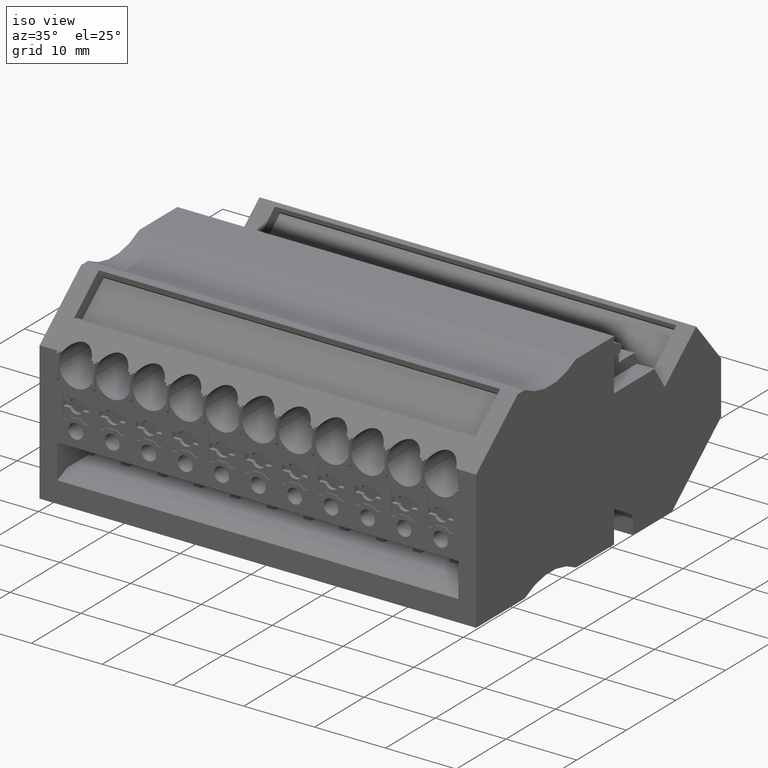
[diagram: clean part render]
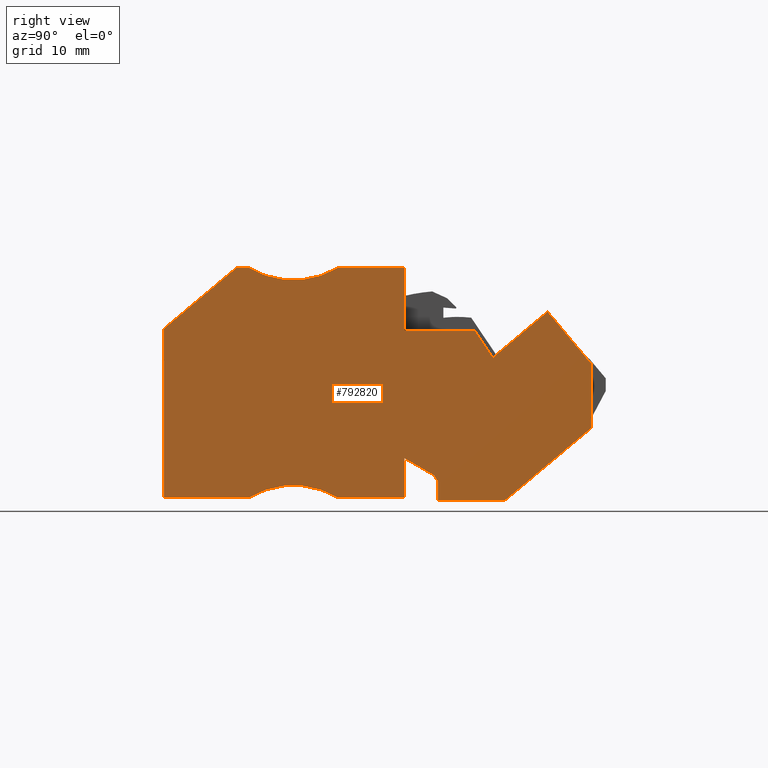
[diagram: tour spotlight — one face highlighted and labeled with its STEP entity id]
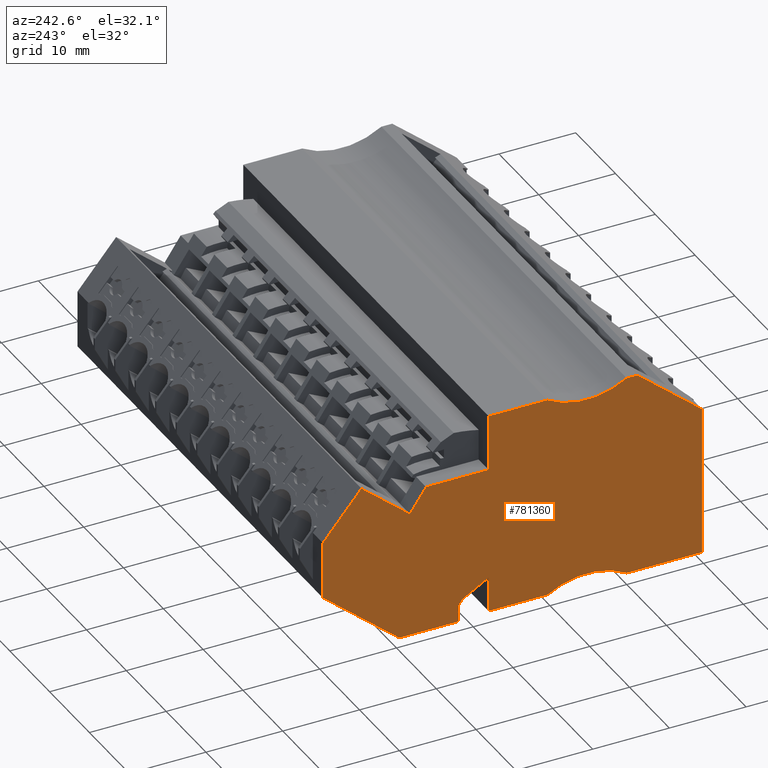
[diagram: tour spotlight — one face highlighted and labeled with its STEP entity id]
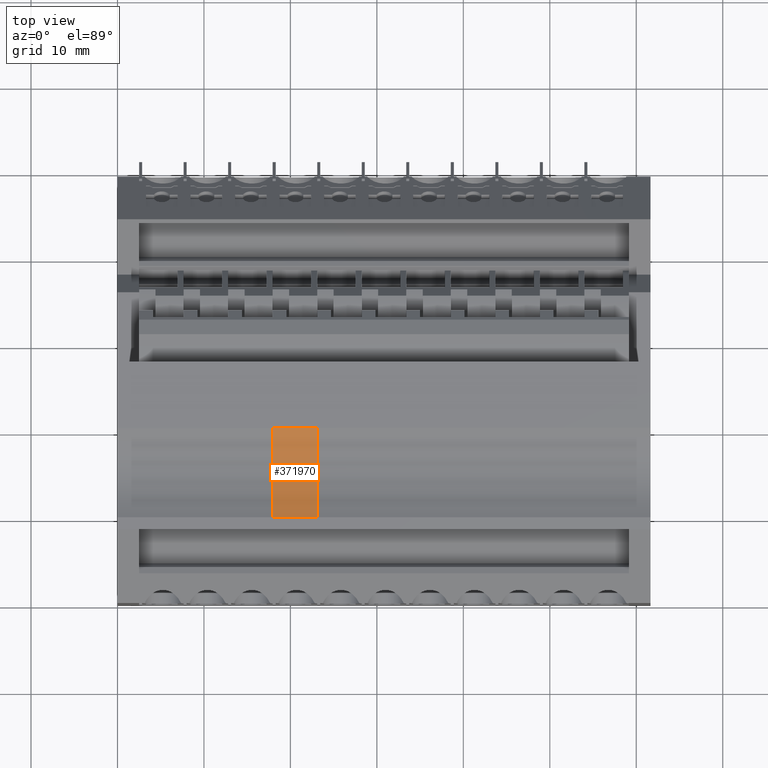
[diagram: tour spotlight — one face highlighted and labeled with its STEP entity id]
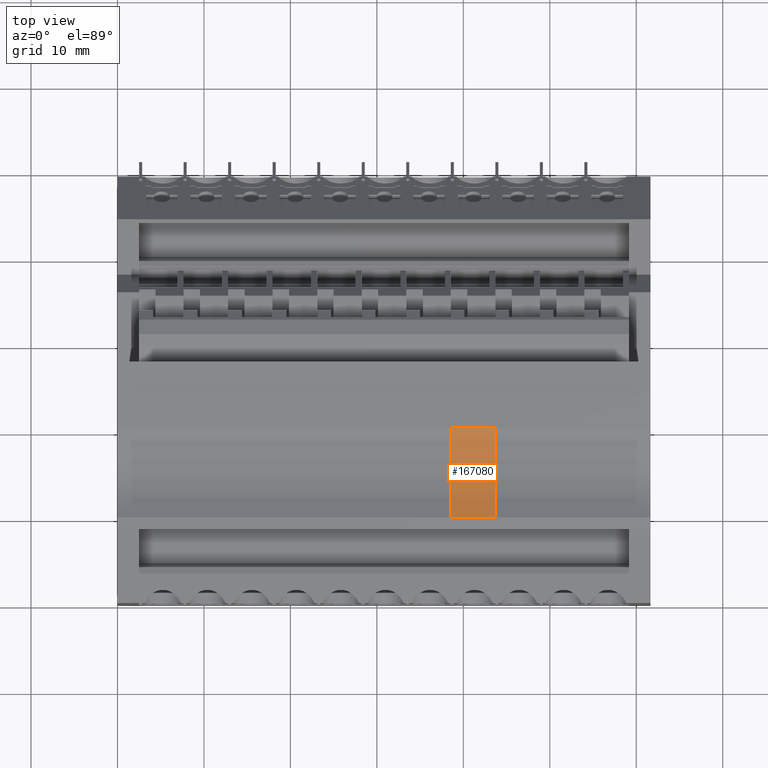
[diagram: tour spotlight — one face highlighted and labeled with its STEP entity id]
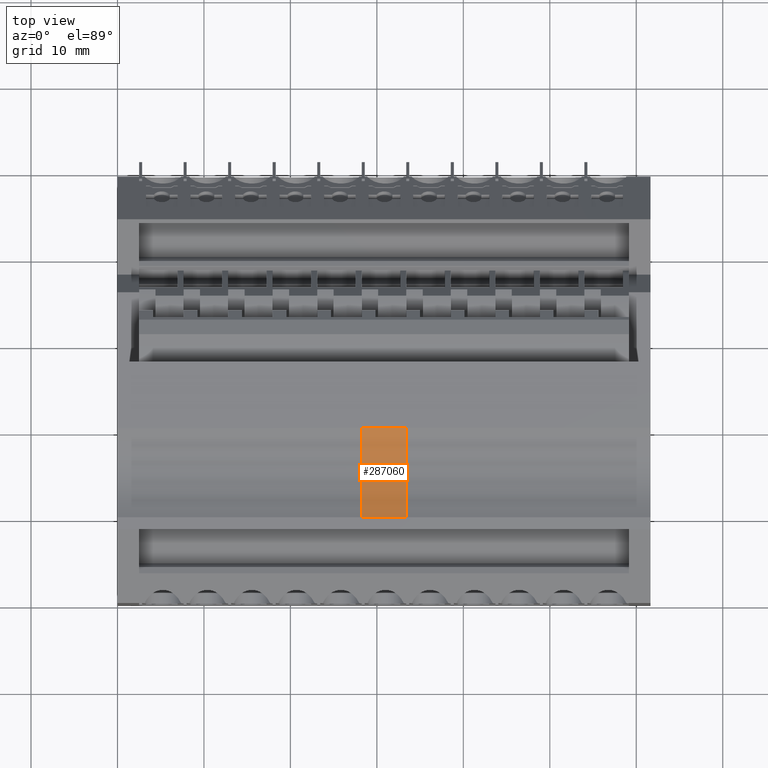
[diagram: tour spotlight — one face highlighted and labeled with its STEP entity id]
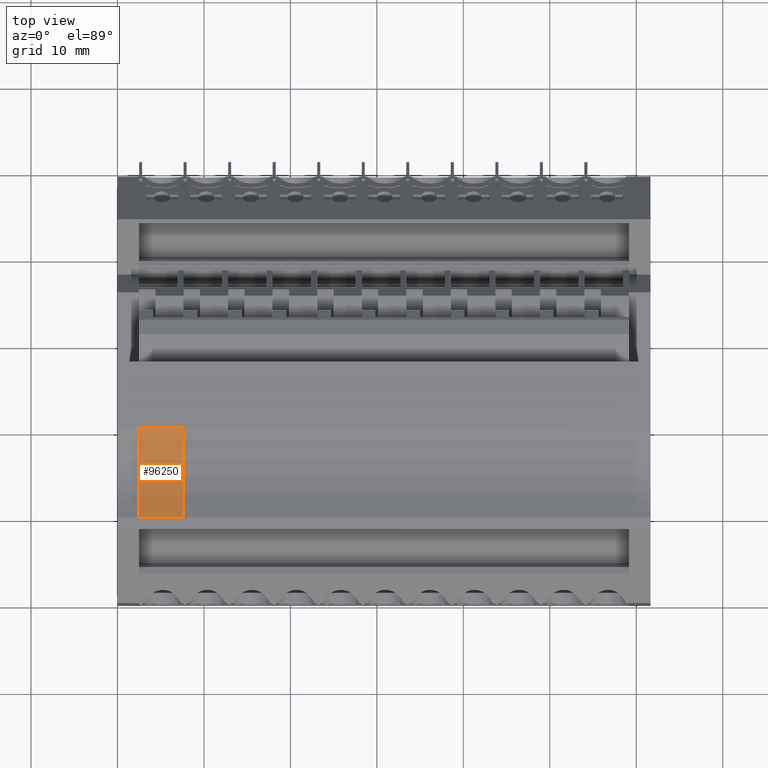
[diagram: tour spotlight — one face highlighted and labeled with its STEP entity id]
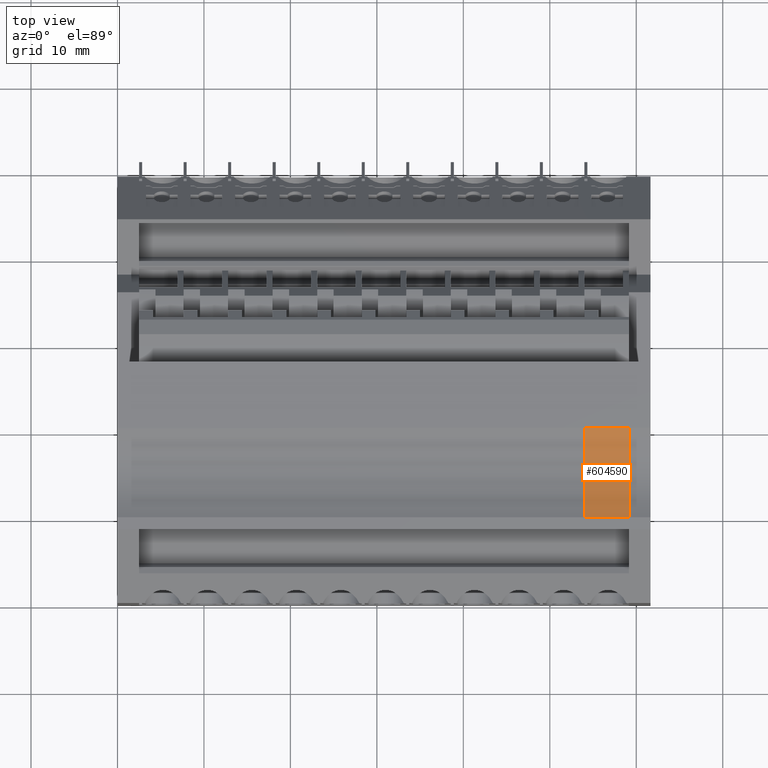
[diagram: tour spotlight — one face highlighted and labeled with its STEP entity id]
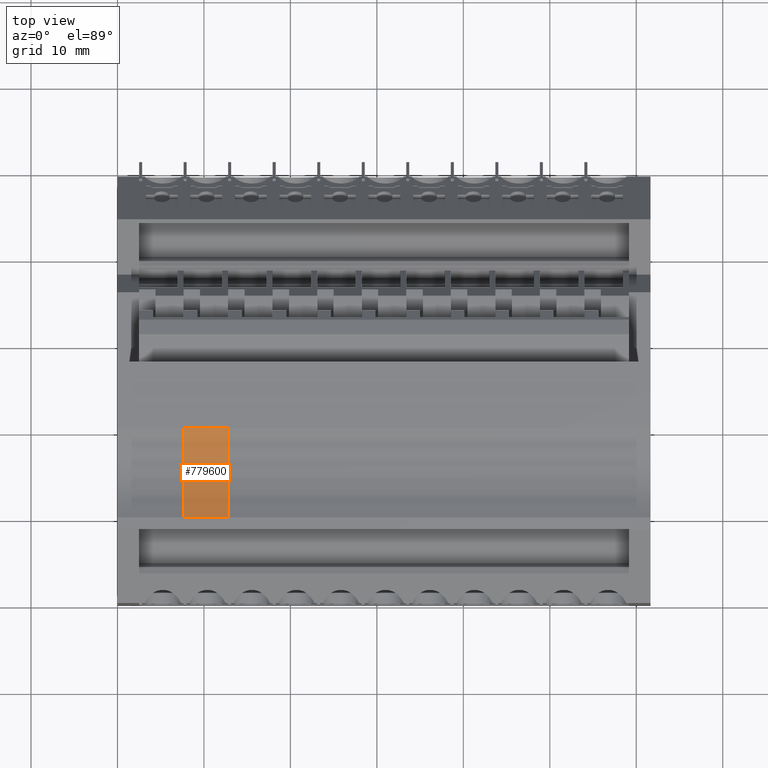
[diagram: tour spotlight — one face highlighted and labeled with its STEP entity id]
A machine part: a face-by-face anatomy tour. The part has 1855 B-rep faces; the first image is the clean iso view, then the 8 largest visible faces are spotlighted one at a time (largest first), each with its STEP entity span.

Face 1 — right view, entity #792820. In plain terms, the highlighted planar face has unit normal (1, 0, -0).
Definition (entity closure, byte-faithful):
#785670=CARTESIAN_POINT('',(464.820007014246,692.44631587293,
127.269999970397));
#785680=VERTEX_POINT('',#785670);
#785710=CARTESIAN_POINT('',(434.418902602833,666.936760439442,
127.269999986573));
#785720=DIRECTION('',(0.766044443506207,0.642787609225058,
-4.07600241177514E-10));
#785730=VECTOR('',#785720,1.);
#785740=LINE('',#785710,#785730);
#785750=CARTESIAN_POINT('',(458.49779835963,687.141352929106,
127.269999973761));
#785760=VERTEX_POINT('',#785750);
#785770=EDGE_CURVE('',#785760,#785680,#785740,.T.);
#786350=CARTESIAN_POINT('',(469.853158719045,678.981362863328,
127.269999975226));
#786360=VERTEX_POINT('',#786350);
#786390=CARTESIAN_POINT('',(469.853158753902,707.918603587073,
127.269999962945));
#786400=DIRECTION('',(1.20455911911653E-9,1.,-4.24416471219152E-10));
#786410=VECTOR('',#786400,1.);
#786420=LINE('',#786390,#786410);
#786430=CARTESIAN_POINT('',(469.853158728039,686.448039228607,
127.269999972057));
#786440=VERTEX_POINT('',#786430);
#786450=EDGE_CURVE('',#786360,#786440,#786420,.T.);
#786730=CARTESIAN_POINT('',(459.905573294321,670.634347626013,
127.269999980519));
#786740=VERTEX_POINT('',#786730);
#786770=CARTESIAN_POINT('',(447.053267509166,659.849982612499,
127.269999987357));
#786780=DIRECTION('',(-0.766044444016711,-0.642787608616663,
4.07600244682758E-10));
#786790=VECTOR('',#786780,1.);
#786800=LINE('',#786770,#786790);
#786810=EDGE_CURVE('',#786360,#786740,#786800,.T.);
#787040=CARTESIAN_POINT('',(420.453158769803,690.486358071241,
127.269999979035));
#787050=VERTEX_POINT('',#787040);
#787080=CARTESIAN_POINT('',(420.453158762509,686.450091425908,
127.269999980748));
#787090=DIRECTION('',(-1.80696546614432E-9,-1.,4.24416371870361E-10));
#787100=VECTOR('',#787090,1.);
#787110=LINE('',#787080,#787100);
#787120=CARTESIAN_POINT('',(420.453158734473,670.934347673536,
127.269999987334));
#787130=VERTEX_POINT('',#787120);
#787140=EDGE_CURVE('',#787050,#787130,#787110,.T.);
#787810=CARTESIAN_POINT('',(435.668902493851,670.934347655208,
127.269999990002));
#787820=DIRECTION('',(1.,-1.20456572494381E-9,-1.2810032886981E-10));
#787830=VECTOR('',#787820,1.);
#787840=LINE('',#787810,#787830);
#787850=CARTESIAN_POINT('',(430.260883725806,670.934347661722,
127.269999990695));
#787860=VERTEX_POINT('',#787850);
#787870=EDGE_CURVE('',#787130,#787860,#787840,.T.);
#788280=CARTESIAN_POINT('',(435.425728085372,662.371381893867,
127.269999994011));
#788290=DIRECTION('',(1.28100595517667E-10,4.64504649617954E-10,1.));
#788300=DIRECTION('',(0.707106782058739,0.707106780314356,
-4.19035115678159E-10));
#788310=AXIS2_PLACEMENT_3D('',#788280,#788290,#788300);
#788320=CIRCLE('',#788310,10.);
#788330=CARTESIAN_POINT('',(440.590572465542,670.934347649295,
127.269999989372));
#788340=VERTEX_POINT('',#788330);
#788350=EDGE_CURVE('',#788340,#787860,#788320,.T.);
#788550=CARTESIAN_POINT('',(435.968902491832,670.934347654846,
127.269999989964));
#788560=DIRECTION('',(1.,-1.20456572494381E-9,-1.28100291599098E-10));
#788570=VECTOR('',#788560,1.);
#788580=LINE('',#788550,#788570);
#788590=CARTESIAN_POINT('',(448.253158713109,670.934347640049,
127.26999998839));
#788600=VERTEX_POINT('',#788590);
#788610=EDGE_CURVE('',#788340,#788600,#788580,.T.);
#788890=CARTESIAN_POINT('',(448.253158718618,675.507552719007,
127.269999980501));
#788900=VERTEX_POINT('',#788890);
#788950=CARTESIAN_POINT('',(448.253158731641,686.318603618097,
127.269999981244));
#788960=DIRECTION('',(-1.20456361551975E-9,-1.,4.64504820525951E-10));
#788970=VECTOR('',#788960,1.);
#788980=LINE('',#788950,#788970);
#788990=EDGE_CURVE('',#788900,#788600,#788980,.T.);
#789170=CARTESIAN_POINT('',(443.998522779913,677.963967930356,
127.269999980207));
#789180=DIRECTION('',(0.866025403182159,-0.50000000104318,
5.9824925418767E-11));
#789190=VECTOR('',#789180,1.);
#789200=LINE('',#789170,#789190);
#789210=CARTESIAN_POINT('',(451.720146009858,673.505886667564,
127.26999998074));
#789220=VERTEX_POINT('',#789210);
#789230=EDGE_CURVE('',#788900,#789220,#789200,.T.);
#789480=CARTESIAN_POINT('',(66.4180495006204,1340.86869594086,
127.269999765297));
#789490=DIRECTION('',(-0.499999998956815,0.866025404386722,
-2.79576749618894E-10));
#789500=VECTOR('',#789490,1.);
#789510=LINE('',#789480,#789500);
#789520=CARTESIAN_POINT('',(452.153158711002,672.755886666775,
127.269999980983));
#789530=VERTEX_POINT('',#789520);
#789540=EDGE_CURVE('',#789530,#789220,#789510,.T.);
#789790=CARTESIAN_POINT('',(452.153158727098,686.118603857895,
127.269999975311));
#789800=DIRECTION('',(1.20456272734136E-9,1.,-4.24416190185318E-10));
#789810=VECTOR('',#789800,1.);
#789820=LINE('',#789790,#789810);
#789830=CARTESIAN_POINT('',(452.153158708446,670.634347635351,
127.269999981883));
#789840=VERTEX_POINT('',#789830);
#789850=EDGE_CURVE('',#789840,#789530,#789820,.T.);
#790100=CARTESIAN_POINT('',(436.268902493472,670.634347654485,
127.269999984678));
#790110=DIRECTION('',(1.,-1.20456572494383E-9,-1.75956908679912E-10));
#790120=VECTOR('',#790110,1.);
#790130=LINE('',#790100,#790120);
#790140=EDGE_CURVE('',#789840,#786740,#790130,.T.);
#790370=CARTESIAN_POINT('',(428.852625738527,697.53434767765,
127.269999974566));
#790380=VERTEX_POINT('',#790370);
#790430=CARTESIAN_POINT('',(418.258461666335,688.644788555632,
127.269999980203));
#790440=DIRECTION('',(0.766044444670996,0.642787607836916,
-4.07600435471174E-10));
#790450=VECTOR('',#790440,1.);
#790460=LINE('',#790430,#790450);
#790470=EDGE_CURVE('',#787050,#790380,#790460,.T.);
#790830=CARTESIAN_POINT('',(430.260883733843,697.534347675834,
127.269999978339));
#790840=VERTEX_POINT('',#790830);
#790870=CARTESIAN_POINT('',(459.468902534872,697.53434764077,
127.269999969179));
#790880=DIRECTION('',(1.,-1.20456350449778E-9,-1.7595690306274E-10));
#790890=VECTOR('',#790880,1.);
#790900=LINE('',#790870,#790890);
#790910=EDGE_CURVE('',#790380,#790840,#790900,.T.);
#791150=CARTESIAN_POINT('',(440.590572495554,697.534347649506,
127.269999977016));
#791160=VERTEX_POINT('',#791150);
#791190=CARTESIAN_POINT('',(435.425728136528,706.097313417682,
127.2699999737));
#791200=DIRECTION('',(1.28100595517667E-10,4.64504649617954E-10,1.));
#791210=DIRECTION('',(0.707106782058739,0.707106780314356,
-4.19035115678159E-10));
#791220=AXIS2_PLACEMENT_3D('',#791190,#791200,#791210);
#791230=CIRCLE('',#791220,10.);
#791240=EDGE_CURVE('',#790840,#791160,#791230,.T.);
#791450=CARTESIAN_POINT('',(448.253158745151,697.534347640276,
127.269999976034));
#791460=VERTEX_POINT('',#791450);
#791490=CARTESIAN_POINT('',(409.368902526425,697.534347687115,
127.269999981035));
#791500=DIRECTION('',(-1.,1.20456378205352E-9,1.28100328869811E-10));
#791510=VECTOR('',#791500,1.);
#791520=LINE('',#791490,#791510);
#791530=EDGE_CURVE('',#791460,#791160,#791520,.T.);
#791760=CARTESIAN_POINT('',(448.253158736357,690.234347640348,
127.269999979425));
#791770=VERTEX_POINT('',#791760);
#791800=EDGE_CURVE('',#791460,#791770,#788980,.T.);
#792060=CARTESIAN_POINT('',(456.411547093334,690.23434763052,
127.269999972815));
#792070=VERTEX_POINT('',#792060);
#792100=CARTESIAN_POINT('',(412.568902751987,690.234347683332,
127.26999998053));
#792110=DIRECTION('',(-1.,1.20456478125426E-9,1.75956911828149E-10));
#792120=VECTOR('',#792110,1.);
#792130=LINE('',#792100,#792120);
#792140=EDGE_CURVE('',#792070,#791770,#792130,.T.);
#792310=CARTESIAN_POINT('',(471.149558076588,668.384347733857,
127.269999979495));
#792320=DIRECTION('',(0.559192902426276,-0.829037573259547,
2.53463132922706E-10));
#792330=VECTOR('',#792320,1.);
#792340=LINE('',#792310,#792330);
#792350=EDGE_CURVE('',#792070,#785760,#792340,.T.);
#792500=CARTESIAN_POINT('',(434.418902615654,672.484347535676,
127.269999984218));
#792510=DIRECTION('',(1.75956914421888E-10,4.2441642785003E-10,1.));
#792520=DIRECTION('',(0.707106780334796,-0.707106782038299,
1.75687407306717E-10));
#792530=AXIS2_PLACEMENT_3D('',#792500,#792510,#792520);
#792540=PLANE('',#792530);
#792550=ORIENTED_EDGE('',*,*,#788990,.F.);
#792560=ORIENTED_EDGE('',*,*,#788610,.T.);
#792570=ORIENTED_EDGE('',*,*,#788350,.F.);
#792580=ORIENTED_EDGE('',*,*,#787870,.T.);
#792590=ORIENTED_EDGE('',*,*,#787140,.T.);
#792600=ORIENTED_EDGE('',*,*,#790470,.F.);
#792610=ORIENTED_EDGE('',*,*,#790910,.F.);
#792620=ORIENTED_EDGE('',*,*,#791240,.F.);
#792630=ORIENTED_EDGE('',*,*,#791530,.T.);
#792640=ORIENTED_EDGE('',*,*,#791800,.F.);
#792650=ORIENTED_EDGE('',*,*,#792140,.T.);
#792660=ORIENTED_EDGE('',*,*,#792350,.F.);
#792670=ORIENTED_EDGE('',*,*,#785770,.F.);
#792680=CARTESIAN_POINT('',(460.05709204653,698.122536903868,
127.269999968826));
#792690=DIRECTION('',(-0.642787609225153,0.766044443506127,
-2.12018918733443E-10));
#792700=VECTOR('',#792690,1.);
#792710=LINE('',#792680,#792700);
#792720=EDGE_CURVE('',#786440,#785680,#792710,.T.);
#792730=ORIENTED_EDGE('',*,*,#792720,.T.);
#792740=ORIENTED_EDGE('',*,*,#786450,.T.);
#792750=ORIENTED_EDGE('',*,*,#786810,.F.);
#792760=ORIENTED_EDGE('',*,*,#790140,.T.);
#792770=ORIENTED_EDGE('',*,*,#789850,.F.);
#792780=ORIENTED_EDGE('',*,*,#789540,.F.);
#792790=ORIENTED_EDGE('',*,*,#789230,.T.);
#792800=EDGE_LOOP('',(#792790,#792780,#792770,#792760,#792750,#792740,
#792730,#792670,#792660,#792650,#792640,#792630,#792620,#792610,#792600,
#792590,#792580,#792570,#792560,#792550));
#792810=FACE_OUTER_BOUND('',#792800,.T.);
#792820=ADVANCED_FACE('',(#792810),#792540,.T.);

Face 2 — auxiliary view, entity #781360. In plain terms, the highlighted planar face has unit normal (1, 0, -0).
Definition (entity closure, byte-faithful):
#7130=CARTESIAN_POINT('',(456.411547139309,690.234347595226,
65.6199999848636));
#7140=VERTEX_POINT('',#7130);
#7170=CARTESIAN_POINT('',(456.354088497213,690.319533535533,
65.6199999848466));
#7180=DIRECTION('',(0.559192902426275,-0.829037573259547,
1.64731964349382E-10));
#7190=VECTOR('',#7180,1.);
#7200=LINE('',#7170,#7190);
#7210=CARTESIAN_POINT('',(458.49779838811,687.141352914838,
65.6199999854782));
#7220=VERTEX_POINT('',#7210);
#7230=EDGE_CURVE('',#7140,#7220,#7200,.T.);
#16460=CARTESIAN_POINT('',(430.260883771781,670.934347626427,
65.6199999960708));
#16470=VERTEX_POINT('',#16460);
#16500=CARTESIAN_POINT('',(437.768902474305,670.934347617416,
65.6199999951893));
#16510=DIRECTION('',(1.,-1.20456622454417E-9,-1.17410331424629E-10));
#16520=VECTOR('',#16510,1.);
#16530=LINE('',#16500,#16520);
#16540=CARTESIAN_POINT('',(420.453158744921,670.934347638241,
65.6199999970832));
#16550=VERTEX_POINT('',#16540);
#16560=EDGE_CURVE('',#16550,#16470,#16530,.T.);
#132620=CARTESIAN_POINT('',(469.853158794938,703.818603800738,
65.6199999782945));
#132630=DIRECTION('',(1.20455923013889E-9,1.,-3.14176849771794E-10));
#132640=VECTOR('',#132630,1.);
#132650=LINE('',#132620,#132640);
#132660=CARTESIAN_POINT('',(469.85315876502,678.981362834245,
65.6199999860979));
#132670=VERTEX_POINT('',#132660);
#132680=CARTESIAN_POINT('',(469.853158774015,686.448039193312,
65.619999983752));
#132690=VERTEX_POINT('',#132680);
#132700=EDGE_CURVE('',#132670,#132690,#132650,.T.);
#160130=CARTESIAN_POINT('',(452.153158773073,686.118603821514,
65.6199999868857));
#160140=DIRECTION('',(-1.20456283836372E-9,-1.,3.14176849771795E-10));
#160150=VECTOR('',#160140,1.);
#160160=LINE('',#160130,#160150);
#160170=CARTESIAN_POINT('',(452.153158756977,672.75588663148,
65.6199999910839));
#160180=VERTEX_POINT('',#160170);
#160190=CARTESIAN_POINT('',(452.153158754421,670.634347600057,
65.6199999917505));
#160200=VERTEX_POINT('',#160190);
#160210=EDGE_CURVE('',#160180,#160200,#160160,.T.);
#280900=CARTESIAN_POINT('',(431.868902781178,670.93434762449,
65.6199999958821));
#280910=DIRECTION('',(-1.,1.20456572494381E-9,1.17410245693599E-10));
#280920=VECTOR('',#280910,1.);
#280930=LINE('',#280900,#280920);
#280940=CARTESIAN_POINT('',(448.253158759084,670.934347604754,
65.6199999939584));
#280950=VERTEX_POINT('',#280940);
#280960=CARTESIAN_POINT('',(440.590572511543,670.934347613985,
65.6199999948579));
#280970=VERTEX_POINT('',#280960);
#280980=EDGE_CURVE('',#280950,#280970,#280930,.T.);
#407210=CARTESIAN_POINT('',(416.029110052551,686.774140391277,
65.6199999889374));
#407220=DIRECTION('',(-0.766044444670996,-0.642787607836916,
4.47228797581442E-10));
#407230=VECTOR('',#407220,1.);
#407240=LINE('',#407210,#407230);
#407250=CARTESIAN_POINT('',(428.852625747158,697.534347628255,
65.6199999814509));
#407260=VERTEX_POINT('',#407250);
#407270=CARTESIAN_POINT('',(420.453158780251,690.486358028797,
65.6199999909404));
#407280=VERTEX_POINT('',#407270);
#407290=EDGE_CURVE('',#407260,#407280,#407240,.T.);
#468270=CARTESIAN_POINT('',(448.253158764593,675.507552683712,
65.6199999914164));
#468280=VERTEX_POINT('',#468270);
#468330=CARTESIAN_POINT('',(448.253158772677,682.218603830513,
65.6199999876862));
#468340=DIRECTION('',(1.20456367103085E-9,1.,-5.55840372298432E-10));
#468350=VECTOR('',#468340,1.);
#468360=LINE('',#468330,#468350);
#468370=EDGE_CURVE('',#280950,#468280,#468360,.T.);
#518300=CARTESIAN_POINT('',(443.998522826577,677.963967894663,
65.6199999908437));
#518310=DIRECTION('',(0.866025403182158,-0.50000000104318,
8.82702489348227E-12));
#518320=VECTOR('',#518310,1.);
#518330=LINE('',#518300,#518320);
#518340=CARTESIAN_POINT('',(451.720146055833,673.50588663227,
65.6199999909224));
#518350=VERTEX_POINT('',#518340);
#518360=EDGE_CURVE('',#468280,#518350,#518330,.T.);
#520780=CARTESIAN_POINT('',(464.820007042638,692.446315858589,
65.6199999827291));
#520790=VERTEX_POINT('',#520780);
#520820=CARTESIAN_POINT('',(461.927740217505,695.893185242398,
65.6199999821414));
#520830=DIRECTION('',(-0.642787609225153,0.766044443506128,
-1.30629770124897E-10));
#520840=VECTOR('',#520830,1.);
#520850=LINE('',#520820,#520840);
#520860=EDGE_CURVE('',#132690,#520790,#520850,.T.);
#522940=CARTESIAN_POINT('',(444.823915920298,657.97933445416,
65.6199999969811));
#522950=DIRECTION('',(-0.766044444016711,-0.642787608616664,
3.33093887820067E-10));
#522960=VECTOR('',#522950,1.);
#522970=LINE('',#522940,#522960);
#522980=CARTESIAN_POINT('',(459.905573332894,670.634347590718,
65.6199999904233));
#522990=VERTEX_POINT('',#522980);
#523000=EDGE_CURVE('',#132670,#522990,#522970,.T.);
#528570=CARTESIAN_POINT('',(432.168902780816,670.634347624129,
65.6199999951717));
#528580=DIRECTION('',(1.,-1.20456572494383E-9,-1.71197442612219E-10));
#528590=VECTOR('',#528580,1.);
#528600=LINE('',#528570,#528590);
#528610=EDGE_CURVE('',#160200,#522990,#528600,.T.);
#780450=CARTESIAN_POINT('',(435.425728131347,662.371381858572,
65.6200000002241));
#780460=DIRECTION('',(1.17410559961435E-10,5.5584020857613E-10,1.));
#780470=DIRECTION('',(-0.70710678033479,0.707106782038305,
-3.10016884805469E-10));
#780480=AXIS2_PLACEMENT_3D('',#780450,#780460,#780470);
#780490=CIRCLE('',#780480,10.);
#780500=EDGE_CURVE('',#280970,#16470,#780490,.T.);
#780640=CARTESIAN_POINT('',(434.418902661629,672.484347500381,
65.6199999942053));
#780650=DIRECTION('',(1.71197519729751E-10,3.14176843554808E-10,1.));
#780660=DIRECTION('',(0.707106780334796,-0.707106782038299,
1.01101649859584E-10));
#780670=AXIS2_PLACEMENT_3D('',#780640,#780650,#780660);
#780680=PLANE('',#780670);
#780690=ORIENTED_EDGE('',*,*,#520860,.F.);
#780700=CARTESIAN_POINT('',(435.206020061881,667.597230335747,
65.619999995606));
#780710=DIRECTION('',(0.766044443506207,0.642787609225058,
-3.3309388789434E-10));
#780720=VECTOR('',#780710,1.);
#780730=LINE('',#780700,#780720);
#780740=EDGE_CURVE('',#7220,#520790,#780730,.T.);
#780750=ORIENTED_EDGE('',*,*,#780740,.T.);
#780760=ORIENTED_EDGE('',*,*,#7230,.T.);
#780770=CARTESIAN_POINT('',(412.568902804127,690.234347648037,
65.6199999923693));
#780780=DIRECTION('',(1.,-1.20456467023196E-9,-1.71197442612219E-10));
#780790=VECTOR('',#780780,1.);
#780800=LINE('',#780770,#780790);
#780810=CARTESIAN_POINT('',(448.253158782332,690.234347605053,
65.6199999832308));
#780820=VERTEX_POINT('',#780810);
#780830=EDGE_CURVE('',#780820,#7140,#780800,.T.);
#780840=ORIENTED_EDGE('',*,*,#780830,.T.);
#780850=CARTESIAN_POINT('',(448.253158791126,697.534347604982,
65.6199999791731));
#780860=VERTEX_POINT('',#780850);
#780870=EDGE_CURVE('',#780820,#780860,#468360,.T.);
#780880=ORIENTED_EDGE('',*,*,#780870,.F.);
#780890=CARTESIAN_POINT('',(405.268902812992,697.534347656759,
65.6199999842198));
#780900=DIRECTION('',(1.,-1.20456367103121E-9,-1.174102456936E-10));
#780910=VECTOR('',#780900,1.);
#780920=LINE('',#780890,#780910);
#780930=CARTESIAN_POINT('',(440.590572541529,697.534347614206,
65.6199999800726));
#780940=VERTEX_POINT('',#780930);
#780950=EDGE_CURVE('',#780940,#780860,#780920,.T.);
#780960=ORIENTED_EDGE('',*,*,#780950,.T.);
#780970=CARTESIAN_POINT('',(435.425728182503,706.097313382387,
65.6199999759195));
#780980=DIRECTION('',(1.17410559961435E-10,5.5584020857613E-10,1.));
#780990=DIRECTION('',(-0.70710678033479,0.707106782038305,
-3.10016884805469E-10));
#781000=AXIS2_PLACEMENT_3D('',#780970,#780980,#780990);
#781010=CIRCLE('',#781000,10.);
#781020=CARTESIAN_POINT('',(430.26088380298,697.534347626569,
65.6199999812855));
#781030=VERTEX_POINT('',#781020);
#781040=EDGE_CURVE('',#781030,#780940,#781010,.T.);
#781050=ORIENTED_EDGE('',*,*,#781040,.T.);
#781060=CARTESIAN_POINT('',(405.268902813088,697.534347656663,
65.6199999842198));
#781070=DIRECTION('',(-1.,1.20456356000891E-9,1.174102456936E-10));
#781080=VECTOR('',#781070,1.);
#781090=LINE('',#781060,#781080);
#781100=EDGE_CURVE('',#781030,#407260,#781090,.T.);
#781110=ORIENTED_EDGE('',*,*,#781100,.F.);
#781120=ORIENTED_EDGE('',*,*,#407290,.F.);
#781130=CARTESIAN_POINT('',(420.453158772957,686.450091425359,
65.6199999922086));
#781140=DIRECTION('',(-1.80696546614438E-9,-1.,3.14176839863505E-10));
#781150=VECTOR('',#781140,1.);
#781160=LINE('',#781130,#781150);
#781170=EDGE_CURVE('',#407280,#16550,#781160,.T.);
#781180=ORIENTED_EDGE('',*,*,#781170,.F.);
#781190=ORIENTED_EDGE('',*,*,#16560,.F.);
#781200=ORIENTED_EDGE('',*,*,#780500,.T.);
#781210=ORIENTED_EDGE('',*,*,#280980,.T.);
#781220=ORIENTED_EDGE('',*,*,#468370,.F.);
#781230=ORIENTED_EDGE('',*,*,#518360,.F.);
#781240=CARTESIAN_POINT('',(447.262064812042,681.227509872266,
65.6199999892596));
#781250=DIRECTION('',(0.499999998956815,-0.866025404386722,
1.86486341807172E-10));
#781260=VECTOR('',#781250,1.);
#781270=LINE('',#781240,#781260);
#781280=EDGE_CURVE('',#518350,#160180,#781270,.T.);
#781290=ORIENTED_EDGE('',*,*,#781280,.F.);
#781300=ORIENTED_EDGE('',*,*,#160210,.F.);
#781310=ORIENTED_EDGE('',*,*,#528610,.F.);
#781320=ORIENTED_EDGE('',*,*,#523000,.T.);
#781330=ORIENTED_EDGE('',*,*,#132700,.F.);
#781340=EDGE_LOOP('',(#781330,#781320,#781310,#781300,#781290,#781230,
#781220,#781210,#781200,#781190,#781180,#781120,#781110,#781050,#780960,
#780880,#780840,#780760,#780750,#780690));
#781350=FACE_OUTER_BOUND('',#781340,.T.);
#781360=ADVANCED_FACE('',(#781350),#780680,.F.);

Face 3 — top view, entity #371970. In plain terms, the highlighted cylindrical surface (partial cylindrical patch) has radius 10 mm, axis along (1, 0, -0).
Definition (entity closure, byte-faithful):
#56820=CARTESIAN_POINT('',(440.590572543565,697.534347620336,
82.9450001635446));
#56830=DIRECTION('',(3.65710502038586E-10,4.95141851786755E-10,1.));
#56840=VECTOR('',#56830,1.);
#56850=LINE('',#56820,#56840);
#90680=CARTESIAN_POINT('',(430.260883799414,697.534347634237,
82.9450001673223));
#90690=DIRECTION('',(3.65710502038586E-10,4.95141851786755E-10,1.));
#90700=VECTOR('',#90690,1.);
#90710=LINE('',#90680,#90700);
#95920=CARTESIAN_POINT('',(435.425728183013,706.097313387596,
82.9450001611936));
#95930=DIRECTION('',(3.65710502038586E-10,4.95141851786755E-10,1.));
#95940=DIRECTION('',(-0.386155668810907,-0.922433628747999,
5.97956747321646E-10));
#95950=AXIS2_PLACEMENT_3D('',#95920,#95930,#95940);
#95960=CYLINDRICAL_SURFACE('',#95950,10.);
#137110=CARTESIAN_POINT('',(430.260883798556,697.534347635201,
83.5699999847475));
#137120=VERTEX_POINT('',#137110);
#137130=CARTESIAN_POINT('',(430.260883800242,697.534347639998,
88.7199999840404));
#137140=VERTEX_POINT('',#137130);
#137150=EDGE_CURVE('',#137120,#137140,#90710,.T.);
#318080=CARTESIAN_POINT('',(440.590572545468,697.534347621655,
83.5699999809698));
#318090=VERTEX_POINT('',#318080);
#321250=CARTESIAN_POINT('',(435.425728183241,706.097313387905,
83.5699999786187));
#321260=DIRECTION('',(3.65710502038586E-10,4.95141851786755E-10,1.));
#321270=DIRECTION('',(-0.386155668810907,-0.922433628747999,
5.97956728772318E-10));
#321280=AXIS2_PLACEMENT_3D('',#321250,#321260,#321270);
#321290=CIRCLE('',#321280,10.);
#321300=EDGE_CURVE('',#137120,#318090,#321290,.T.);
#371820=ORIENTED_EDGE('',*,*,#137150,.T.);
#371830=ORIENTED_EDGE('',*,*,#321300,.F.);
#371840=CARTESIAN_POINT('',(440.590572545677,697.534347627362,
88.7199999832219));
#371850=VERTEX_POINT('',#371840);
#371860=EDGE_CURVE('',#318090,#371850,#56850,.T.);
#371870=ORIENTED_EDGE('',*,*,#371860,.F.);
#371880=CARTESIAN_POINT('',(435.425728185125,706.097313390455,
88.7199999786188));
#371890=DIRECTION('',(3.65710502038586E-10,4.95141851786755E-10,1.));
#371900=DIRECTION('',(-0.386155668810907,-0.922433628747999,
5.97956728772318E-10));
#371910=AXIS2_PLACEMENT_3D('',#371880,#371890,#371900);
#371920=CIRCLE('',#371910,10.);
#371930=EDGE_CURVE('',#137140,#371850,#371920,.T.);
#371940=ORIENTED_EDGE('',*,*,#371930,.T.);
#371950=EDGE_LOOP('',(#371940,#371870,#371830,#371820));
#371960=FACE_OUTER_BOUND('',#371950,.T.);
#371970=ADVANCED_FACE('',(#371960),#95960,.F.);

Face 4 — top view, entity #167080. In plain terms, the highlighted cylindrical surface (partial cylindrical patch) has radius 10 mm, axis along (1, 0, -0).
Definition (entity closure, byte-faithful):
#56780=CARTESIAN_POINT('',(440.590572553677,697.534347632262,
104.16999998097));
#56790=VERTEX_POINT('',#56780);
#56820=CARTESIAN_POINT('',(440.590572543565,697.534347620336,
82.9450001635446));
#56830=DIRECTION('',(3.65710502038586E-10,4.95141851786755E-10,1.));
#56840=VECTOR('',#56830,1.);
#56850=LINE('',#56820,#56840);
#90680=CARTESIAN_POINT('',(430.260883799414,697.534347634237,
82.9450001673223));
#90690=DIRECTION('',(3.65710502038586E-10,4.95141851786755E-10,1.));
#90700=VECTOR('',#90690,1.);
#90710=LINE('',#90680,#90700);
#90720=CARTESIAN_POINT('',(430.26088380906,697.534347647296,
109.31999998463));
#90730=VERTEX_POINT('',#90720);
#92050=CARTESIAN_POINT('',(440.590572553211,697.53434763909,
109.319999983105));
#92060=VERTEX_POINT('',#92050);
#95920=CARTESIAN_POINT('',(435.425728183013,706.097313387596,
82.9450001611936));
#95930=DIRECTION('',(3.65710502038586E-10,4.95141851786755E-10,1.));
#95940=DIRECTION('',(-0.386155668810907,-0.922433628747999,
5.97956747321646E-10));
#95950=AXIS2_PLACEMENT_3D('',#95920,#95930,#95940);
#95960=CYLINDRICAL_SURFACE('',#95950,10.);
#96810=CARTESIAN_POINT('',(435.425728192659,706.097313400655,
109.319999978501));
#96820=DIRECTION('',(3.65710502038586E-10,4.95141851786755E-10,1.));
#96830=DIRECTION('',(-0.386155668810907,-0.922433628747999,
5.97956728772318E-10));
#96840=AXIS2_PLACEMENT_3D('',#96810,#96820,#96830);
#96850=CIRCLE('',#96840,10.);
#96860=EDGE_CURVE('',#90730,#92060,#96850,.T.);
#166920=CARTESIAN_POINT('',(430.2608838053,697.534347645877,
104.169999984747));
#166930=VERTEX_POINT('',#166920);
#166940=EDGE_CURVE('',#166930,#90730,#90710,.T.);
#166950=ORIENTED_EDGE('',*,*,#166940,.T.);
#166960=CARTESIAN_POINT('',(435.425728190775,706.097313398105,
104.169999978619));
#166970=DIRECTION('',(3.65710502038586E-10,4.95141851786755E-10,1.));
#166980=DIRECTION('',(-0.386155668810907,-0.922433628747999,
5.97956728772318E-10));
#166990=AXIS2_PLACEMENT_3D('',#166960,#166970,#166980);
#167000=CIRCLE('',#166990,10.);
#167010=EDGE_CURVE('',#166930,#56790,#167000,.T.);
#167020=ORIENTED_EDGE('',*,*,#167010,.F.);
#167030=EDGE_CURVE('',#56790,#92060,#56850,.T.);
#167040=ORIENTED_EDGE('',*,*,#167030,.F.);
#167050=ORIENTED_EDGE('',*,*,#96860,.T.);
#167060=EDGE_LOOP('',(#167050,#167040,#167020,#166950));
#167070=FACE_OUTER_BOUND('',#167060,.T.);
#167080=ADVANCED_FACE('',(#167070),#95960,.F.);

Face 5 — top view, entity #287060. In plain terms, the highlighted cylindrical surface (partial cylindrical patch) has radius 10 mm, axis along (1, 0, -0).
Definition (entity closure, byte-faithful):
#56820=CARTESIAN_POINT('',(440.590572543565,697.534347620336,
82.9450001635446));
#56830=DIRECTION('',(3.65710502038586E-10,4.95141851786755E-10,1.));
#56840=VECTOR('',#56830,1.);
#56850=LINE('',#56820,#56840);
#56860=CARTESIAN_POINT('',(440.590572551625,697.53434762961,
99.0199999809697));
#56870=VERTEX_POINT('',#56860);
#90680=CARTESIAN_POINT('',(430.260883799414,697.534347634237,
82.9450001673223));
#90690=DIRECTION('',(3.65710502038586E-10,4.95141851786755E-10,1.));
#90700=VECTOR('',#90690,1.);
#90710=LINE('',#90680,#90700);
#95920=CARTESIAN_POINT('',(435.425728183013,706.097313387596,
82.9450001611936));
#95930=DIRECTION('',(3.65710502038586E-10,4.95141851786755E-10,1.));
#95940=DIRECTION('',(-0.386155668810907,-0.922433628747999,
5.97956747321646E-10));
#95950=AXIS2_PLACEMENT_3D('',#95920,#95930,#95940);
#95960=CYLINDRICAL_SURFACE('',#95950,10.);
#207480=CARTESIAN_POINT('',(430.260883805293,697.534347642196,
99.0199999847474));
#207490=VERTEX_POINT('',#207480);
#286820=CARTESIAN_POINT('',(430.260883803409,697.534347639646,
93.8699999846303));
#286830=VERTEX_POINT('',#286820);
#286840=EDGE_CURVE('',#286830,#207490,#90710,.T.);
#286850=ORIENTED_EDGE('',*,*,#286840,.T.);
#286860=CARTESIAN_POINT('',(435.425728187008,706.097313393005,
93.8699999785016));
#286870=DIRECTION('',(3.65710502038586E-10,4.95141851786755E-10,1.));
#286880=DIRECTION('',(-0.386155668810907,-0.922433628747999,
5.97956728772318E-10));
#286890=AXIS2_PLACEMENT_3D('',#286860,#286870,#286880);
#286900=CIRCLE('',#286890,10.);
#286910=CARTESIAN_POINT('',(440.590572547561,697.534347625745,
93.8699999808525));
#286920=VERTEX_POINT('',#286910);
#286930=EDGE_CURVE('',#286830,#286920,#286900,.T.);
#286940=ORIENTED_EDGE('',*,*,#286930,.F.);
#286950=EDGE_CURVE('',#286920,#56870,#56850,.T.);
#286960=ORIENTED_EDGE('',*,*,#286950,.F.);
#286970=CARTESIAN_POINT('',(435.425728188892,706.097313395555,
99.0199999786187));
#286980=DIRECTION('',(3.65710502038586E-10,4.95141851786755E-10,1.));
#286990=DIRECTION('',(-0.386155668810907,-0.922433628747999,
5.97956728772318E-10));
#287000=AXIS2_PLACEMENT_3D('',#286970,#286980,#286990);
#287010=CIRCLE('',#287000,10.);
#287020=EDGE_CURVE('',#207490,#56870,#287010,.T.);
#287030=ORIENTED_EDGE('',*,*,#287020,.T.);
#287040=EDGE_LOOP('',(#287030,#286960,#286940,#286850));
#287050=FACE_OUTER_BOUND('',#287040,.T.);
#287060=ADVANCED_FACE('',(#287050),#95960,.F.);

Face 6 — top view, entity #96250. In plain terms, the highlighted cylindrical surface (partial cylindrical patch) has radius 10 mm, axis along (1, 0, -0).
Definition (entity closure, byte-faithful):
#56820=CARTESIAN_POINT('',(440.590572543565,697.534347620336,
82.9450001635446));
#56830=DIRECTION('',(3.65710502038586E-10,4.95141851786755E-10,1.));
#56840=VECTOR('',#56830,1.);
#56850=LINE('',#56820,#56840);
#90680=CARTESIAN_POINT('',(430.260883799414,697.534347634237,
82.9450001673223));
#90690=DIRECTION('',(3.65710502038586E-10,4.95141851786755E-10,1.));
#90700=VECTOR('',#90690,1.);
#90710=LINE('',#90680,#90700);
#95920=CARTESIAN_POINT('',(435.425728183013,706.097313387596,
82.9450001611936));
#95930=DIRECTION('',(3.65710502038586E-10,4.95141851786755E-10,1.));
#95940=DIRECTION('',(-0.386155668810907,-0.922433628747999,
5.97956747321646E-10));
#95950=AXIS2_PLACEMENT_3D('',#95920,#95930,#95940);
#95960=CYLINDRICAL_SURFACE('',#95950,10.);
#95970=CARTESIAN_POINT('',(430.260883801922,697.534347622113,
68.1199999847475));
#95980=VERTEX_POINT('',#95970);
#95990=CARTESIAN_POINT('',(430.260883795876,697.534347629446,
73.2699999847475));
#96000=VERTEX_POINT('',#95990);
#96010=EDGE_CURVE('',#95980,#96000,#90710,.T.);
#96020=ORIENTED_EDGE('',*,*,#96010,.T.);
#96030=CARTESIAN_POINT('',(435.425728177591,706.097313380255,
68.1199999786188));
#96040=DIRECTION('',(3.65710502038586E-10,4.95141851786755E-10,1.));
#96050=DIRECTION('',(-0.386155668810907,-0.922433628747999,
5.97956728772318E-10));
#96060=AXIS2_PLACEMENT_3D('',#96030,#96040,#96050);
#96070=CIRCLE('',#96060,10.);
#96080=CARTESIAN_POINT('',(440.590572542381,697.534347615551,
68.1199999809697));
#96090=VERTEX_POINT('',#96080);
#96100=EDGE_CURVE('',#95980,#96090,#96070,.T.);
#96110=ORIENTED_EDGE('',*,*,#96100,.F.);
#96120=CARTESIAN_POINT('',(440.590572540027,697.534347615545,
73.2699999809697));
#96130=VERTEX_POINT('',#96120);
#96140=EDGE_CURVE('',#96090,#96130,#56850,.T.);
#96150=ORIENTED_EDGE('',*,*,#96140,.F.);
#96160=CARTESIAN_POINT('',(435.425728179475,706.097313382805,
73.2699999786187));
#96170=DIRECTION('',(3.65710502038586E-10,4.95141851786755E-10,1.));
#96180=DIRECTION('',(-0.386155668810907,-0.922433628747999,
5.97956728772318E-10));
#96190=AXIS2_PLACEMENT_3D('',#96160,#96170,#96180);
#96200=CIRCLE('',#96190,10.);
#96210=EDGE_CURVE('',#96000,#96130,#96200,.T.);
#96220=ORIENTED_EDGE('',*,*,#96210,.T.);
#96230=EDGE_LOOP('',(#96220,#96150,#96110,#96020));
#96240=FACE_OUTER_BOUND('',#96230,.T.);
#96250=ADVANCED_FACE('',(#96240),#95960,.F.);

Face 7 — top view, entity #604590. In plain terms, the highlighted cylindrical surface (partial cylindrical patch) has radius 10 mm, axis along (1, 0, -0).
Definition (entity closure, byte-faithful):
#56820=CARTESIAN_POINT('',(440.590572543565,697.534347620336,
82.9450001635446));
#56830=DIRECTION('',(3.65710502038586E-10,4.95141851786755E-10,1.));
#56840=VECTOR('',#56830,1.);
#56850=LINE('',#56820,#56840);
#90680=CARTESIAN_POINT('',(430.260883799414,697.534347634237,
82.9450001673223));
#90690=DIRECTION('',(3.65710502038586E-10,4.95141851786755E-10,1.));
#90700=VECTOR('',#90690,1.);
#90710=LINE('',#90680,#90700);
#95920=CARTESIAN_POINT('',(435.425728183013,706.097313387596,
82.9450001611936));
#95930=DIRECTION('',(3.65710502038586E-10,4.95141851786755E-10,1.));
#95940=DIRECTION('',(-0.386155668810907,-0.922433628747999,
5.97956747321646E-10));
#95950=AXIS2_PLACEMENT_3D('',#95920,#95930,#95940);
#95960=CYLINDRICAL_SURFACE('',#95950,10.);
#583120=CARTESIAN_POINT('',(440.590572559834,697.534347640218,
119.61999998097));
#583130=VERTEX_POINT('',#583120);
#583930=CARTESIAN_POINT('',(435.425728196425,706.097313405755,
119.619999978619));
#583940=DIRECTION('',(3.65710502038586E-10,4.95141851786755E-10,1.));
#583950=DIRECTION('',(-0.386155668810907,-0.922433628747999,
5.97956728772318E-10));
#583960=AXIS2_PLACEMENT_3D('',#583930,#583940,#583950);
#583970=CIRCLE('',#583960,10.);
#583980=CARTESIAN_POINT('',(430.260883810359,697.534347653884,
119.619999984747));
#583990=VERTEX_POINT('',#583980);
#584000=EDGE_CURVE('',#583990,#583130,#583970,.T.);
#604410=CARTESIAN_POINT('',(430.260883812181,697.534347656471,
124.76999997931));
#604420=VERTEX_POINT('',#604410);
#604430=EDGE_CURVE('',#583990,#604420,#90710,.T.);
#604440=ORIENTED_EDGE('',*,*,#604430,.T.);
#604450=ORIENTED_EDGE('',*,*,#584000,.F.);
#604460=CARTESIAN_POINT('',(440.590572515675,697.534347614997,
124.769999975532));
#604470=VERTEX_POINT('',#604460);
#604480=EDGE_CURVE('',#583130,#604470,#56850,.T.);
#604490=ORIENTED_EDGE('',*,*,#604480,.F.);
#604500=CARTESIAN_POINT('',(435.425728198309,706.097313408305,
124.769999973181));
#604510=DIRECTION('',(3.65710502038586E-10,4.95141851786755E-10,1.));
#604520=DIRECTION('',(-0.386155668810907,-0.922433628747999,
5.97956678594543E-10));
#604530=AXIS2_PLACEMENT_3D('',#604500,#604510,#604520);
#604540=CIRCLE('',#604530,10.);
#604550=EDGE_CURVE('',#604420,#604470,#604540,.T.);
#604560=ORIENTED_EDGE('',*,*,#604550,.T.);
#604570=EDGE_LOOP('',(#604560,#604490,#604450,#604440));
#604580=FACE_OUTER_BOUND('',#604570,.T.);
#604590=ADVANCED_FACE('',(#604580),#95960,.F.);

Face 8 — top view, entity #779600. In plain terms, the highlighted cylindrical surface (partial cylindrical patch) has radius 10 mm, axis along (1, 0, -0).
Definition (entity closure, byte-faithful):
#56820=CARTESIAN_POINT('',(440.590572543565,697.534347620336,
82.9450001635446));
#56830=DIRECTION('',(3.65710502038586E-10,4.95141851786755E-10,1.));
#56840=VECTOR('',#56830,1.);
#56850=LINE('',#56820,#56840);
#90680=CARTESIAN_POINT('',(430.260883799414,697.534347634237,
82.9450001673223));
#90690=DIRECTION('',(3.65710502038586E-10,4.95141851786755E-10,1.));
#90700=VECTOR('',#90690,1.);
#90710=LINE('',#90680,#90700);
#95920=CARTESIAN_POINT('',(435.425728183013,706.097313387596,
82.9450001611936));
#95930=DIRECTION('',(3.65710502038586E-10,4.95141851786755E-10,1.));
#95940=DIRECTION('',(-0.386155668810907,-0.922433628747999,
5.97956747321646E-10));
#95950=AXIS2_PLACEMENT_3D('',#95920,#95930,#95940);
#95960=CYLINDRICAL_SURFACE('',#95950,10.);
#95990=CARTESIAN_POINT('',(430.260883795876,697.534347629446,
73.2699999847475));
#96000=VERTEX_POINT('',#95990);
#96120=CARTESIAN_POINT('',(440.590572540027,697.534347615545,
73.2699999809697));
#96130=VERTEX_POINT('',#96120);
#96160=CARTESIAN_POINT('',(435.425728179475,706.097313382805,
73.2699999786187));
#96170=DIRECTION('',(3.65710502038586E-10,4.95141851786755E-10,1.));
#96180=DIRECTION('',(-0.386155668810907,-0.922433628747999,
5.97956728772318E-10));
#96190=AXIS2_PLACEMENT_3D('',#96160,#96170,#96180);
#96200=CIRCLE('',#96190,10.);
#96210=EDGE_CURVE('',#96000,#96130,#96200,.T.);
#255040=CARTESIAN_POINT('',(440.59057254191,697.534347621499,
78.4199999832219));
#255050=VERTEX_POINT('',#255040);
#255080=EDGE_CURVE('',#96130,#255050,#56850,.T.);
#288700=CARTESIAN_POINT('',(430.260883797759,697.534347634006,
78.4199999840403));
#288710=VERTEX_POINT('',#288700);
#321170=CARTESIAN_POINT('',(435.425728181358,706.097313385355,
78.4199999786187));
#321180=DIRECTION('',(3.65710502038586E-10,4.95141851786755E-10,1.));
#321190=DIRECTION('',(-0.386155668810907,-0.922433628747999,
5.97956728772318E-10));
#321200=AXIS2_PLACEMENT_3D('',#321170,#321180,#321190);
#321210=CIRCLE('',#321200,10.);
#321220=EDGE_CURVE('',#288710,#255050,#321210,.T.);
#778090=EDGE_CURVE('',#96000,#288710,#90710,.T.);
#779540=ORIENTED_EDGE('',*,*,#778090,.T.);
#779550=ORIENTED_EDGE('',*,*,#96210,.F.);
#779560=ORIENTED_EDGE('',*,*,#255080,.F.);
#779570=ORIENTED_EDGE('',*,*,#321220,.T.);
#779580=EDGE_LOOP('',(#779570,#779560,#779550,#779540));
#779590=FACE_OUTER_BOUND('',#779580,.T.);
#779600=ADVANCED_FACE('',(#779590),#95960,.F.);